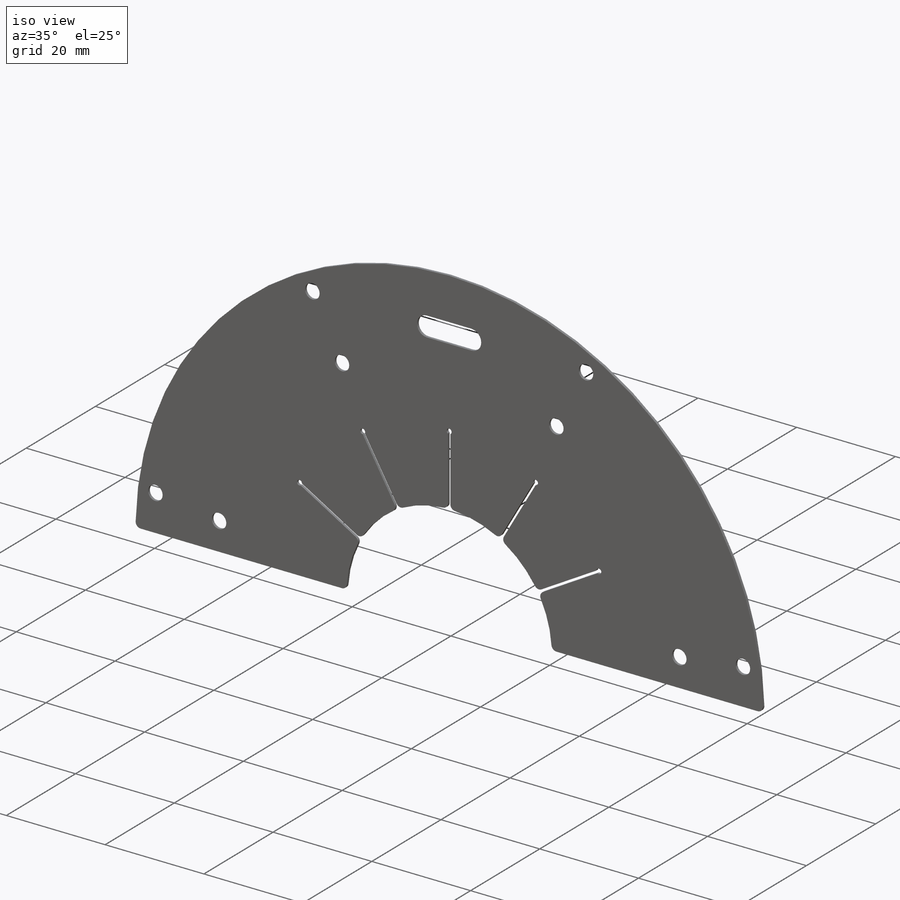
[diagram: iso view]
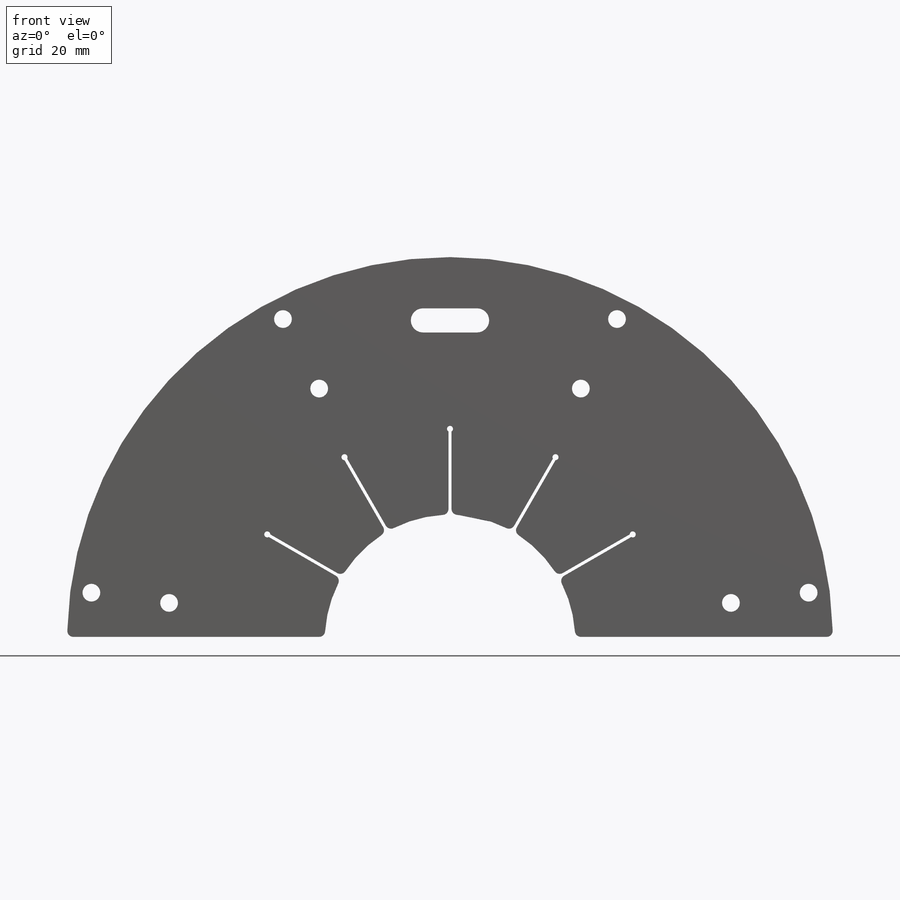
[diagram: front view]
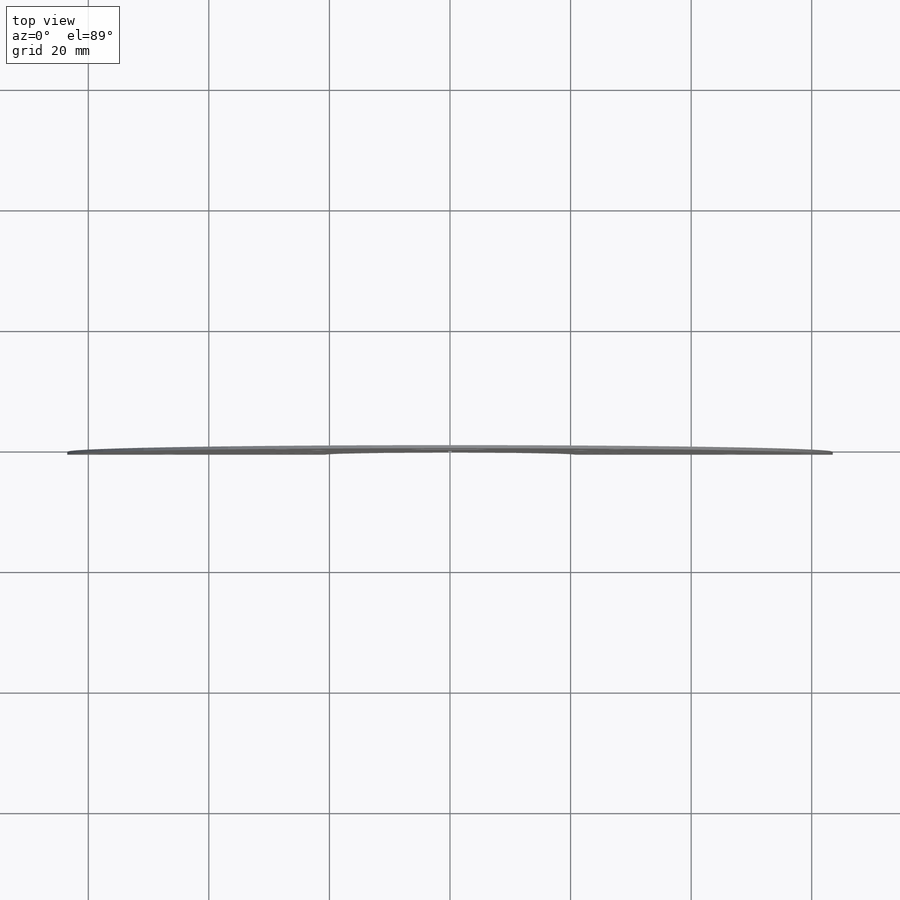
[diagram: top view]
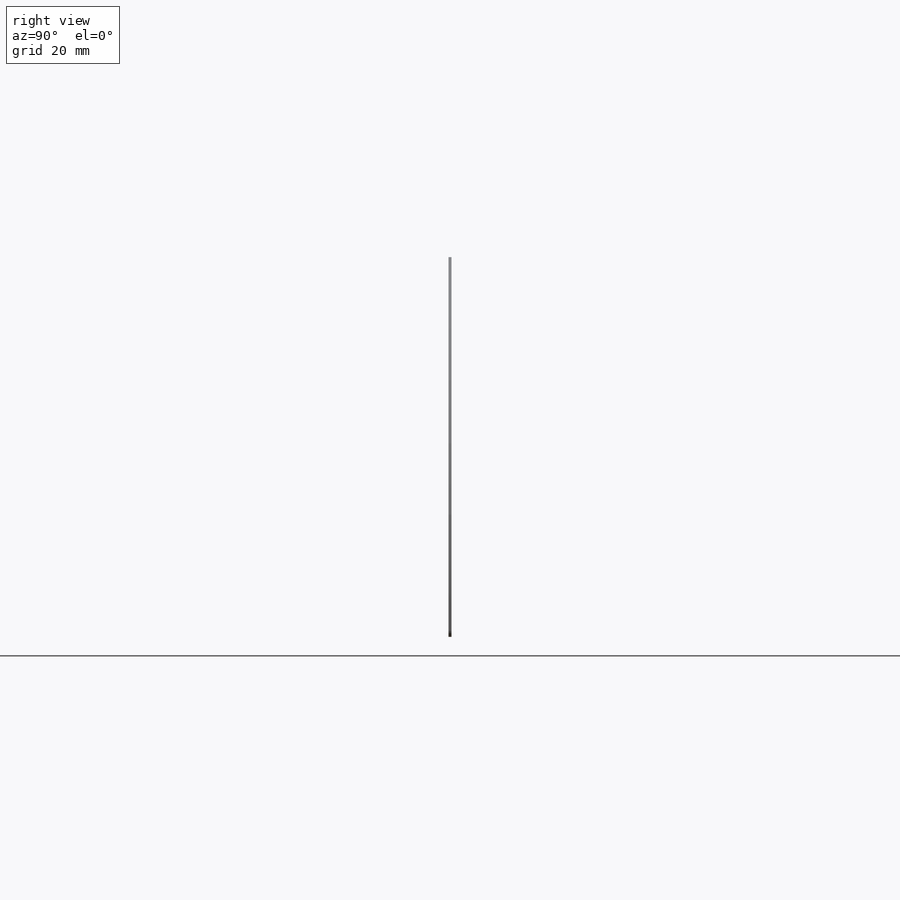
[diagram: right view]
SOLIDWORKS PART (.sldprt)
format: sldprt  version: not decoded by parser v0  size: 336,896 bytes
history: native  units: mm
features: sketch x5, cut_extrude x2, pattern_circular x2, material x1, extrude x1, fillet x1, hole x1 (+11 scaffold rows collapsed)
feature tree (24):
  scaffold x11  (default folders/planes/origin — collapsed)
  material  "kapton needs fixing aluminized"
  sketch  "Sketch1"  dims[D1=63.5mm D2=20.7645mm D3=0.5mm]
  extrude  "Boss-Extrude1"  Depth=0.508mm
  sketch  "Sketch2"  dims[c1.D2=70.0mm c1.D3=1.0mm c1.D5=70.0mm c1.D1=~98.178055mm c2.D1=30.0deg c2.D4=0.5mm c3.D1=~85.024689mm c4.D1=30.0deg]
  cut_extrude  "Cut-Extrude1"  [1 undecoded]
  pattern_circular  "CirPattern1"  Count=5 Angle=30deg
  fillet  "Fillet1"  Radius=1mm
  hole  "#4 Clearance Hole1"  Diameter=2.9464mm Depth=135.89mm
  sketch  "Sketch4"  dims[c1.D1=~16.80762mm c2.D1=7.5deg c2.D2=60.0mm c2.D3=47.0mm]
  sketch  "Sketch3"  dims[hole-wizard template sketch: 47 standard entries collapsed; hole parameters kept: c15.Hole Depth=135.89mm c15.D3=~14.816244mm c15.Drill Angle=118.0deg]
  pattern_circular  "CirPattern2"  Count=4 Angle=55deg
  sketch  "Sketch5"  dims[D1=53.0mm D2=4.0mm D3=9.0mm]
  cut_extrude  "Cut-Extrude2"  [1 undecoded]
decode coverage: 10 of 12 modeling features carry decoded parameters
note: ~ marks probable driven/reference dimensions
note: 2 parameter values undecoded
note: suppression state not decoded; provenance and decode notes live in map.json
